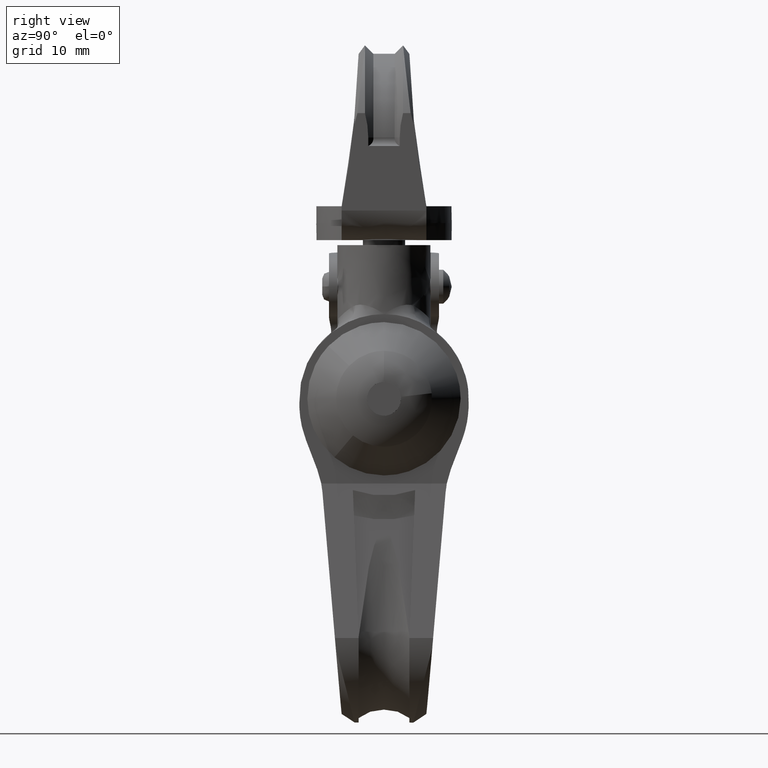
[diagram: clean part render]
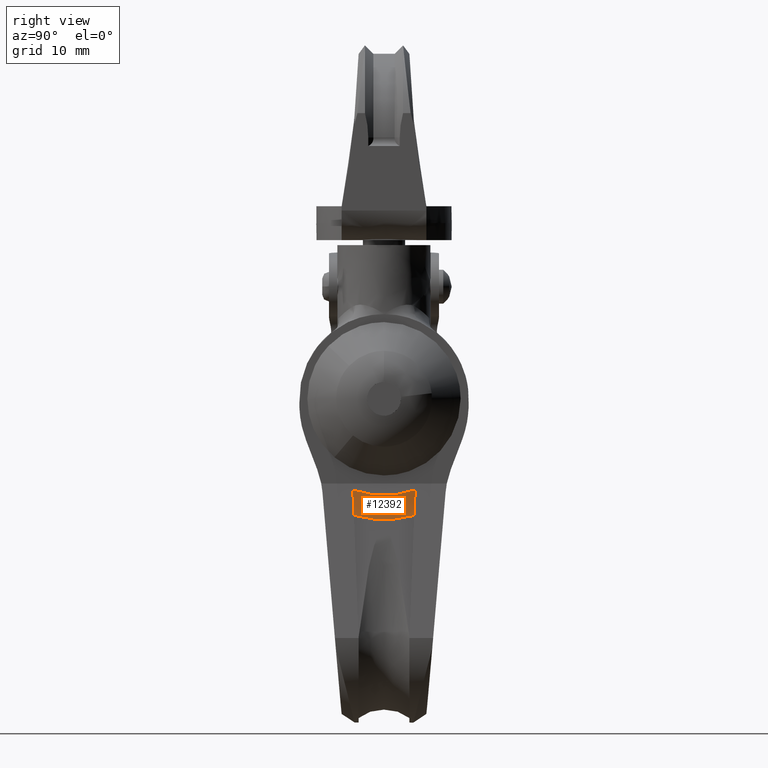
[diagram: same view with one face highlighted and labeled with its STEP entity id]
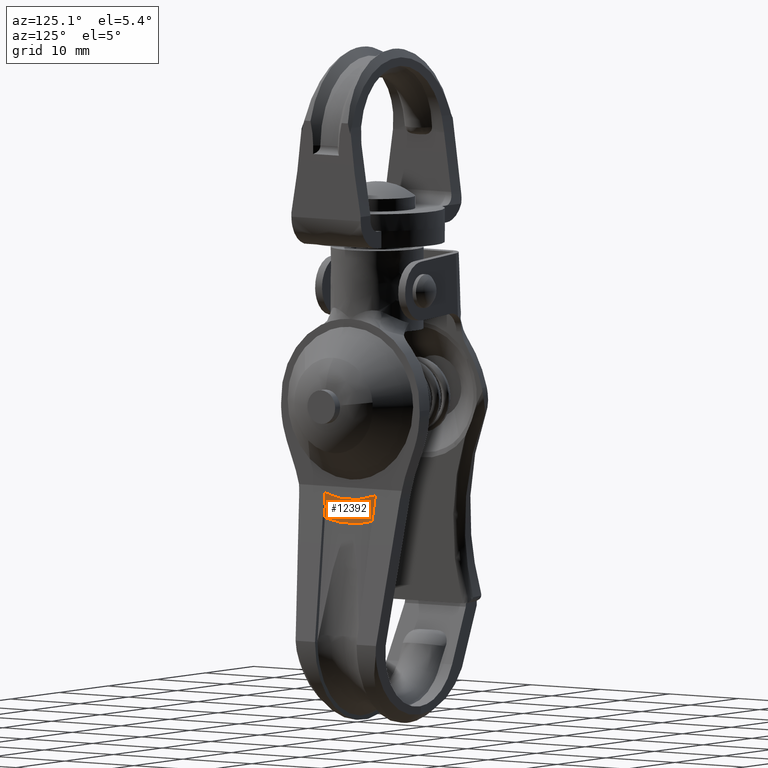
[diagram: same view with one face highlighted and labeled with its STEP entity id]
A machine part, right view. The second image highlights one B-rep face of the part: STEP entity #12392.
A second angle (auxiliary view) of the same face is appended — the face is thin or edge-on in the first view.
In plain terms, the highlighted face is a freeform B-spline surface patch.
Its self-contained STEP definition (entity closure, byte-faithful):
#12333=CARTESIAN_POINT('',(6.514010430291841,5.112807172199958,-13.192182235186529));
#12334=CARTESIAN_POINT('',(6.921500534098699,0.000000688012299,-15.212877539468796));
#12335=CARTESIAN_POINT('',(6.514010524626452,-5.112805988576504,-13.192182702980718));
#12336=CARTESIAN_POINT('',(6.196437311968923,4.520952405508628,-11.758699918606396));
#12337=CARTESIAN_POINT('',(6.556756663546166,0.000000608368531,-13.545481032974916));
#12338=CARTESIAN_POINT('',(6.196437395383428,-4.520951358900493,-11.758700332249068));
#12339=CARTESIAN_POINT('',(6.491754121256832,3.969722526892597,-10.304413184376337));
#12340=CARTESIAN_POINT('',(6.808140519195604,0.000000534191509,-11.873335969693066));
#12341=CARTESIAN_POINT('',(6.491754194500787,-3.969721607895058,-10.304413547584467));
#12349=(BOUNDED_SURFACE()B_SPLINE_SURFACE(2,2,((#12333,#12336,#12339),(#12334,#12337,#12340),(#12335,#12338,#12341)),.UNSPECIFIED.,.F.,.F.,.U.)B_SPLINE_SURFACE_WITH_KNOTS((3,3),(3,3),(0.0,10.610472168770819),(0.0,3.135679570058006),.UNSPECIFIED.)GEOMETRIC_REPRESENTATION_ITEM()RATIONAL_B_SPLINE_SURFACE(((0.894777049922268,0.877910092959488,0.895088975282771),(0.829867017231539,0.814223644096643,0.830156314513518),(0.894777033720137,0.877910077062774,0.895088959074992)))REPRESENTATION_ITEM('')SURFACE());
#12350=CARTESIAN_POINT('',(6.584170707639650,-3.607101373324320,-13.546401225753099));
#12351=VERTEX_POINT('',#12350);
#12352=CARTESIAN_POINT('',(6.492566050170680,-3.677129945153345,-10.562791378773721));
#12353=VERTEX_POINT('',#12352);
#12354=CARTESIAN_POINT('',(6.584170707639650,-3.607101373324320,-13.546401225753099));
#12355=CARTESIAN_POINT('',(6.387853522757506,-3.633694684057248,-12.566263086838090));
#12356=CARTESIAN_POINT('',(6.356958735050985,-3.657465918973667,-11.553285448647690));
#12357=CARTESIAN_POINT('',(6.492566050170680,-3.677129945153345,-10.562791378773721));
#12358=B_SPLINE_CURVE_WITH_KNOTS('',3,(#12354,#12355,#12356,#12357),.UNSPECIFIED.,.F.,.U.,(4,4),(4.204608E-009,2.999689127094450),.UNSPECIFIED.);
#12359=EDGE_CURVE('',#12351,#12353,#12358,.T.);
#12360=ORIENTED_EDGE('',*,*,#12359,.F.);
#12361=CARTESIAN_POINT('',(6.584170634640641,3.607102708548580,-13.546400863759519));
#12362=VERTEX_POINT('',#12361);
#12363=CARTESIAN_POINT('',(6.584170634640641,3.607102708548580,-13.546400863759519));
#12364=CARTESIAN_POINT('',(6.622254167374361,2.910615925825689,-13.735252605302620));
#12365=CARTESIAN_POINT('',(6.683427849382738,1.299336380779759,-14.038605670383630));
#12366=CARTESIAN_POINT('',(6.687504913646061,-1.147203923393112,-14.058823350605030));
#12367=CARTESIAN_POINT('',(6.626267398975720,-2.837304324520928,-13.755153746891430));
#12368=CARTESIAN_POINT('',(6.584170707639650,-3.607101373324320,-13.546401225753099));
#12369=B_SPLINE_CURVE_WITH_KNOTS('',3,(#12363,#12364,#12365,#12366,#12367,#12368),.UNSPECIFIED.,.F.,.U.,(4,1,1,4),(9.824614E-009,2.167936155314945,4.906374308300925,7.302513157942127),.UNSPECIFIED.);
#12370=EDGE_CURVE('',#12362,#12351,#12369,.T.);
#12371=ORIENTED_EDGE('',*,*,#12370,.F.);
#12372=CARTESIAN_POINT('',(6.492565433108830,3.677130022304630,-10.562788318836599));
#12373=VERTEX_POINT('',#12372);
#12374=CARTESIAN_POINT('',(6.492565433108830,3.677130022304630,-10.562788318836599));
#12375=CARTESIAN_POINT('',(6.356452184932272,3.657486270206014,-11.553267442222710));
#12376=CARTESIAN_POINT('',(6.387792847147058,3.633704782079664,-12.566291887633639));
#12377=CARTESIAN_POINT('',(6.584170634640641,3.607102708548580,-13.546400863759519));
#12378=B_SPLINE_CURVE_WITH_KNOTS('',3,(#12374,#12375,#12376,#12377),.UNSPECIFIED.,.F.,.U.,(4,4),(4.232668E-009,2.999738542891334),.UNSPECIFIED.);
#12379=EDGE_CURVE('',#12373,#12362,#12378,.T.);
#12380=ORIENTED_EDGE('',*,*,#12379,.F.);
#12381=CARTESIAN_POINT('',(6.492566050170680,-3.677129945153345,-10.562791378773721));
#12382=CARTESIAN_POINT('',(6.553427380620058,-2.832311718868536,-10.864595529359210));
#12383=CARTESIAN_POINT('',(6.620716063454966,-1.333865913664750,-11.198272161418600));
#12384=CARTESIAN_POINT('',(6.626142125579472,1.177504881982645,-11.225179362730341));
#12385=CARTESIAN_POINT('',(6.558734312742346,2.758865160569649,-10.890911979057940));
#12386=CARTESIAN_POINT('',(6.492565433108830,3.677130022304630,-10.562788318836599));
#12387=B_SPLINE_CURVE_WITH_KNOTS('',3,(#12381,#12382,#12383,#12384,#12385,#12386),.UNSPECIFIED.,.F.,.U.,(4,1,1,4),(0.000000014363720,2.697437141419304,4.573898305695435,7.505889987371173),.UNSPECIFIED.);
#12388=EDGE_CURVE('',#12353,#12373,#12387,.T.);
#12389=ORIENTED_EDGE('',*,*,#12388,.F.);
#12390=EDGE_LOOP('',(#12360,#12371,#12380,#12389));
#12391=FACE_OUTER_BOUND('',#12390,.T.);
#12392=ADVANCED_FACE('',(#12391),#12349,.F.);